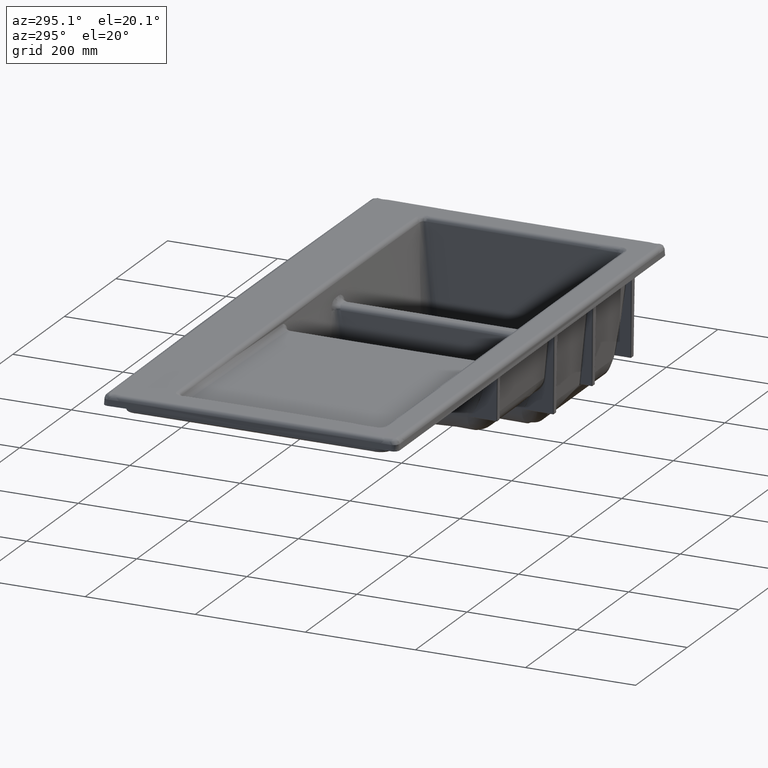
[diagram: clean part render]
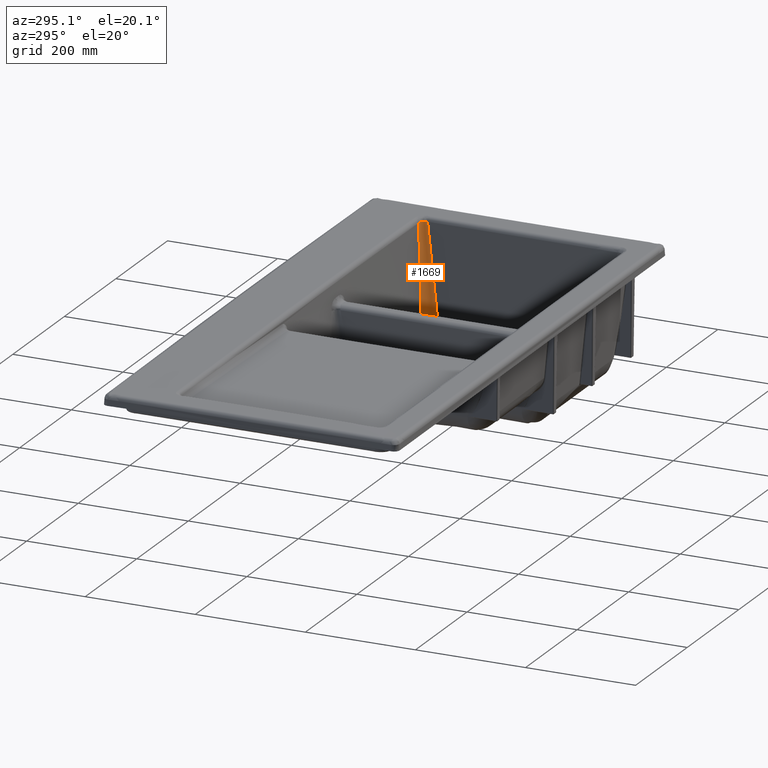
[diagram: same view with one face highlighted and labeled with its STEP entity id]
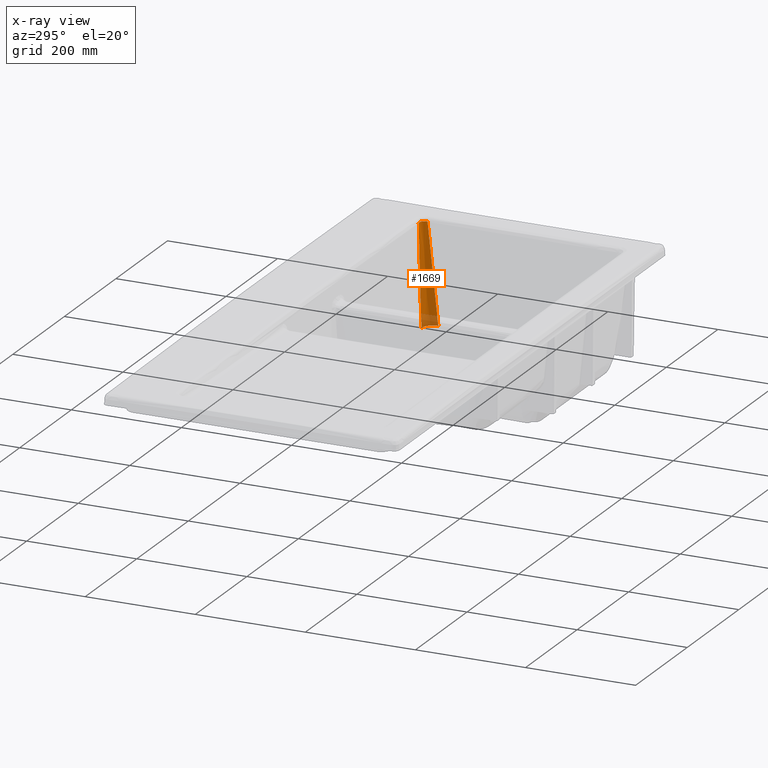
[diagram: x-ray of the same camera — body ghosted, the highlighted face saturated]
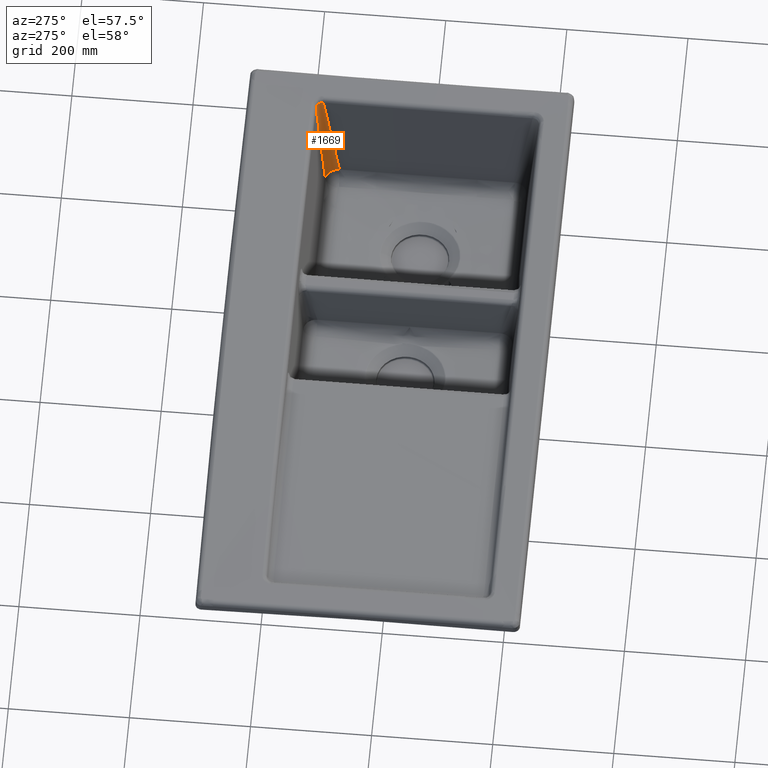
[diagram: same view with one face highlighted and labeled with its STEP entity id]
A machine part, auxiliary view. The second image highlights one B-rep face of the part: STEP entity #1669.
The next image is the same camera in x-ray: the body ghosted, the highlighted face saturated — about 14% of this face is hidden behind the body in this view.
A second angle (auxiliary view) of the same face is appended — the face is thin or edge-on in the first view.
In plain terms, the highlighted face is a freeform B-spline surface patch.
Its self-contained STEP definition (entity closure, byte-faithful):
#87=(
BOUNDED_CURVE()
B_SPLINE_CURVE(3,(#25223,#25224,#25225,#25226),.UNSPECIFIED.,.F.,.F.)
B_SPLINE_CURVE_WITH_KNOTS((4,4),(0.,1.),.UNSPECIFIED.)
CURVE()
GEOMETRIC_REPRESENTATION_ITEM()
RATIONAL_B_SPLINE_CURVE((1.,1.,1.,1.))
REPRESENTATION_ITEM('')
);
#455=(
BOUNDED_SURFACE()
B_SPLINE_SURFACE(2,3,((#26854,#26855,#26856,#26857),(#26858,#26859,#26860,
#26861),(#26862,#26863,#26864,#26865)),.UNSPECIFIED.,.F.,.F.,.F.)
B_SPLINE_SURFACE_WITH_KNOTS((3,3),(4,4),(0.,1.),(0.,1.),.UNSPECIFIED.)
GEOMETRIC_REPRESENTATION_ITEM()
RATIONAL_B_SPLINE_SURFACE(((1.,1.,1.,1.),(0.711172968807249,0.711952615860996,
0.712200700372884,0.712005696044513),(1.,1.,1.,1.)))
REPRESENTATION_ITEM('')
SURFACE()
);
#1171=B_SPLINE_CURVE_WITH_KNOTS('',3,(#24993,#24994,#24995,#24996),
 .UNSPECIFIED.,.F.,.F.,(4,4),(0.,1.),.UNSPECIFIED.);
#1173=B_SPLINE_CURVE_WITH_KNOTS('',3,(#25023,#25024,#25025,#25026,#25027,
#25028),.UNSPECIFIED.,.F.,.F.,(4,2,4),(0.,0.5,1.),.UNSPECIFIED.);
#1176=B_SPLINE_CURVE_WITH_KNOTS('',3,(#25091,#25092,#25093,#25094,#25095,
#25096,#25097,#25098,#25099,#25100,#25101,#25102,#25103,#25104,#25105,#25106,
#25107,#25108,#25109,#25110,#25111,#25112),.UNSPECIFIED.,.F.,.F.,(4,2,2,
2,2,2,2,2,2,2,4),(0.,0.250000000000004,0.281250000000004,0.312500000000004,
0.375000000000005,0.500000000000009,0.750000000000012,0.78125000000001,
0.812500000000009,0.875000000000006,1.),.UNSPECIFIED.);
#1242=B_SPLINE_CURVE_WITH_KNOTS('',3,(#26837,#26838,#26839,#26840,#26841,
#26842,#26843,#26844,#26845,#26846,#26847,#26848,#26849,#26850,#26851,#26852,
#26853),.UNSPECIFIED.,.F.,.F.,(4,2,2,2,1,2,2,2,4),(0.,0.499999999999994,
0.515624999999994,0.523437499999994,0.531249999999994,0.562499999999994,
0.624999999999995,0.749999999999996,1.),.UNSPECIFIED.);
#1669=ADVANCED_FACE('',(#2063),#455,.F.);
#2063=FACE_OUTER_BOUND('',#2473,.T.);
#2473=EDGE_LOOP('',(#4170,#4171,#4172,#4173,#4174));
#4170=ORIENTED_EDGE('',*,*,#5713,.T.);
#4171=ORIENTED_EDGE('',*,*,#5715,.T.);
#4172=ORIENTED_EDGE('',*,*,#5799,.F.);
#4173=ORIENTED_EDGE('',*,*,#5718,.T.);
#4174=ORIENTED_EDGE('',*,*,#5719,.T.);
#4806=VERTEX_POINT('',#22696);
#4810=VERTEX_POINT('',#22725);
#4860=VERTEX_POINT('',#24992);
#4861=VERTEX_POINT('',#25021);
#4863=VERTEX_POINT('',#25090);
#5713=EDGE_CURVE('',#4806,#4860,#1171,.T.);
#5715=EDGE_CURVE('',#4860,#4861,#1173,.T.);
#5718=EDGE_CURVE('',#4863,#4810,#1176,.T.);
#5719=EDGE_CURVE('',#4810,#4806,#87,.T.);
#5799=EDGE_CURVE('',#4863,#4861,#1242,.T.);
#22696=CARTESIAN_POINT('',(470.794900701427,173.349719290688,-8.43009555803835));
#22725=CARTESIAN_POINT('',(452.734893207731,145.297958923544,-180.67228258954));
#24992=CARTESIAN_POINT('',(468.712382894398,180.03674645963,-7.97266228272418));
#24993=CARTESIAN_POINT('',(470.794895556489,173.34975591232,-8.43009093255016));
#24994=CARTESIAN_POINT('',(470.845506134068,175.713215538145,-8.15004249157246));
#24995=CARTESIAN_POINT('',(470.142019140306,178.099485763158,-7.97978723556503));
#24996=CARTESIAN_POINT('',(468.712383082012,180.03674615493,-7.97266245996457));
#25021=CARTESIAN_POINT('',(459.916979337128,184.357577720119,-8.73988982869084));
#25023=CARTESIAN_POINT('',(468.712382495674,180.036747048878,-7.9726621097478));
#25024=CARTESIAN_POINT('',(467.692541143305,181.41870582614,-7.9675790000556));
#25025=CARTESIAN_POINT('',(466.34009852056,182.525334092178,-8.04014554475846));
#25026=CARTESIAN_POINT('',(463.302077892627,183.995362697682,-8.30842936679184));
#25027=CARTESIAN_POINT('',(461.592491999631,184.365077700568,-8.50678029475896));
#25028=CARTESIAN_POINT('',(459.917017916552,184.357845055703,-8.74004408911555));
#25090=CARTESIAN_POINT('',(431.832768136279,166.355449829658,-180.672273285256));
#25091=CARTESIAN_POINT('',(431.823290372981,166.356567528433,-180.672282589539));
#25092=CARTESIAN_POINT('',(434.781018782624,166.342389268293,-180.672282589538));
#25093=CARTESIAN_POINT('',(437.579805638683,165.689807618999,-180.672282589538));
#25094=CARTESIAN_POINT('',(440.163456103153,164.614205225782,-180.672282589538));
#25095=CARTESIAN_POINT('',(440.515294671291,164.458345145913,-180.67233140236));
#25096=CARTESIAN_POINT('',(441.143006938927,164.159520182722,-180.672461544227));
#25097=CARTESIAN_POINT('',(441.452934773614,164.002378236361,-180.672542849607));
#25098=CARTESIAN_POINT('',(442.369267061454,163.508730011477,-180.672765312386));
#25099=CARTESIAN_POINT('',(442.962176187158,163.149954341109,-180.672875454596));
#25100=CARTESIAN_POINT('',(444.675016110485,161.99418570568,-180.672870729722));
#25101=CARTESIAN_POINT('',(445.728138049854,161.117349592908,-180.672282589538));
#25102=CARTESIAN_POINT('',(448.554495636657,158.266139561539,-180.672282589538));
#25103=CARTESIAN_POINT('',(450.125887786123,155.921912556662,-180.672282589538));
#25104=CARTESIAN_POINT('',(451.30855056606,153.012597291739,-180.672282589538));
#25105=CARTESIAN_POINT('',(451.40439454367,152.75886577152,-180.672366715947));
#25106=CARTESIAN_POINT('',(451.61726126533,152.159857941516,-180.672596117507));
#25107=CARTESIAN_POINT('',(451.718615743708,151.853122258921,-180.672741262829));
#25108=CARTESIAN_POINT('',(452.004945726308,150.912503029421,-180.673145619024));
#25109=CARTESIAN_POINT('',(452.172133058714,150.258105181182,-180.673357224232));
#25110=CARTESIAN_POINT('',(452.58402680946,148.226955160036,-180.673381221234));
#25111=CARTESIAN_POINT('',(452.737346631464,146.781097786067,-180.672282589538));
#25112=CARTESIAN_POINT('',(452.734881269288,145.297958618283,-180.672282589538));
#25223=CARTESIAN_POINT('',(452.734881269293,145.29795861829,-180.672282589495));
#25224=CARTESIAN_POINT('',(458.690592973447,154.713707050835,-123.265286668605));
#25225=CARTESIAN_POINT('',(464.705467165939,164.039808011024,-65.8481316699194));
#25226=CARTESIAN_POINT('',(470.794894570618,173.34975440505,-8.43010022846233));
#26837=CARTESIAN_POINT('',(431.82328435131,166.355321063765,-180.672149391022));
#26838=CARTESIAN_POINT('',(435.975818720071,169.062852520409,-155.147494653983));
#26839=CARTESIAN_POINT('',(440.638518838345,172.078922539635,-126.516801667171));
#26840=CARTESIAN_POINT('',(445.986710731398,175.502990978881,-93.7882975794422));
#26841=CARTESIAN_POINT('',(446.149271292188,175.607048219569,-92.7934914878205));
#26842=CARTESIAN_POINT('',(446.393849009419,175.763580412912,-91.2967324896707));
#26843=CARTESIAN_POINT('',(446.471151690326,175.813050779609,-90.8236485169845));
#26844=CARTESIAN_POINT('',(446.604635202215,175.898467961656,-90.0067488488963));
#26845=CARTESIAN_POINT('',(446.938852420695,176.112319037408,-87.9613961092077));
#26846=CARTESIAN_POINT('',(447.275617466663,176.327710431136,-85.9005255221802));
#26847=CARTESIAN_POINT('',(448.088783738493,176.847605122749,-80.9246418464236));
#26848=CARTESIAN_POINT('',(448.637469538538,177.198142009399,-77.5676603733982));
#26849=CARTESIAN_POINT('',(450.303507826218,178.261558745859,-67.3775388867592));
#26850=CARTESIAN_POINT('',(451.4408636569,178.986244068553,-60.4252218055827));
#26851=CARTESIAN_POINT('',(454.934161911789,181.20742231266,-39.0915622918016));
#26852=CARTESIAN_POINT('',(457.371694380681,182.75102736986,-24.2335115889454));
#26853=CARTESIAN_POINT('',(459.916888647865,184.357303180027,-8.73984985908703));
#26854=CARTESIAN_POINT('',(464.478830184514,187.230804491998,19.0089462618828));
#26855=CARTESIAN_POINT('',(451.269793953812,178.927714700013,-61.2610293427685));
#26856=CARTESIAN_POINT('',(438.174500855462,170.564623069591,-141.539514433014));
#26857=CARTESIAN_POINT('',(425.13100803583,161.969143311468,-221.841228473305));
#26858=CARTESIAN_POINT('',(473.706676209954,187.028196158131,18.053079816203));
#26859=CARTESIAN_POINT('',(465.120799750706,178.642015455686,-62.6883537823635));
#26860=CARTESIAN_POINT('',(456.635764612466,170.232450058698,-143.427977955885));
#26861=CARTESIAN_POINT('',(448.236946259873,161.641895622356,-224.192138605456));
#26862=CARTESIAN_POINT('',(473.711120928317,177.798579500955,19.0133035787716));
#26863=CARTESIAN_POINT('',(465.165597603651,164.789769422427,-61.2454018149346));
#26864=CARTESIAN_POINT('',(456.770529537935,151.772273119582,-141.505284311213));
#26865=CARTESIAN_POINT('',(448.483883806511,138.545377369357,-221.740992516433));